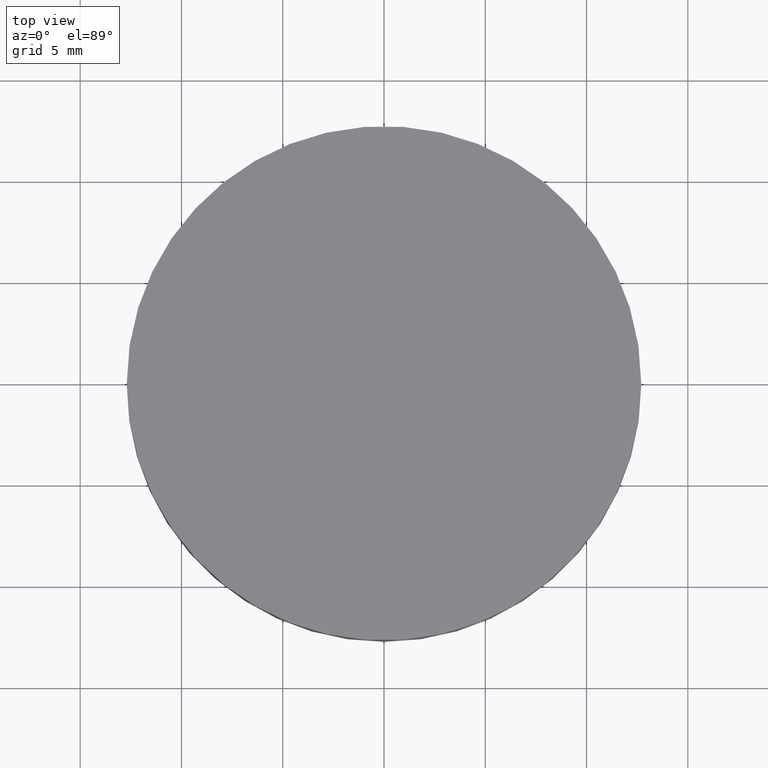
[diagram: clean part render]
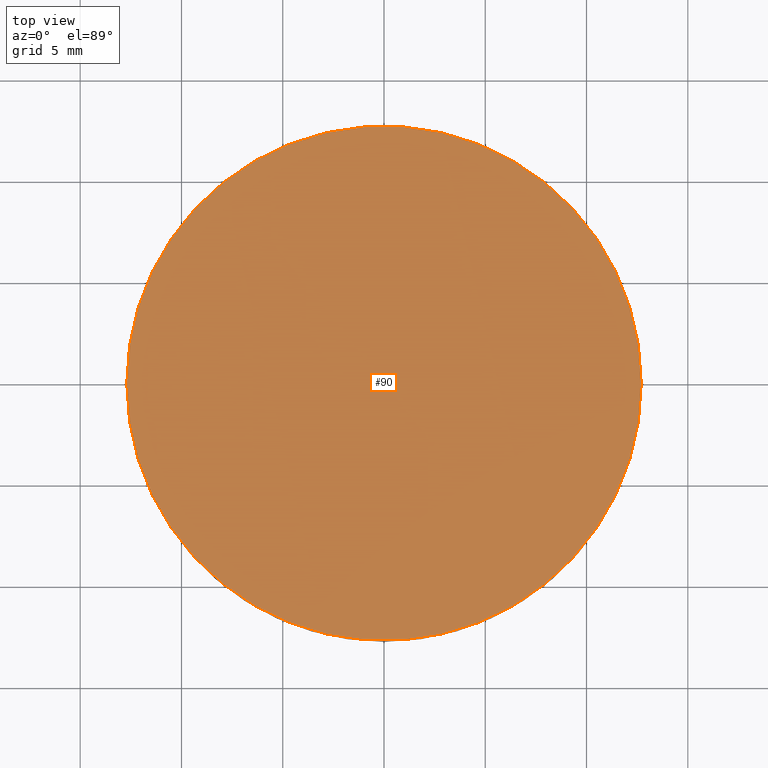
[diagram: same view with one face highlighted and labeled with its STEP entity id]
A machine part, top view. The second image highlights one B-rep face of the part: STEP entity #90.
In plain terms, the highlighted planar face has unit normal (0, 0, 1).
Its self-contained STEP definition (entity closure, byte-faithful):
#9 = CARTESIAN_POINT ( 'NONE',  ( 0.0000000000000000000, 26.11199999999999800, 3.100000000000000500 ) ) ;
#25 = CIRCLE ( 'NONE', #119, 12.69999999999999900 ) ;
#27 = PLANE ( 'NONE',  #140 ) ;
#31 = CARTESIAN_POINT ( 'NONE',  ( -12.69999999999999900, 3.997792089092478900E-015, 3.100000000000000500 ) ) ;
#38 = FACE_OUTER_BOUND ( 'NONE', #86, .T. ) ;
#46 = DIRECTION ( 'NONE',  ( -0.0000000000000000000, -0.0000000000000000000, -1.000000000000000000 ) ) ;
#47 = DIRECTION ( 'NONE',  ( 1.000000000000000000, 0.0000000000000000000, 0.0000000000000000000 ) ) ;
#50 = DIRECTION ( 'NONE',  ( 0.0000000000000000000, 0.0000000000000000000, 1.000000000000000000 ) ) ;
#75 = VERTEX_POINT ( 'NONE', #215 ) ;
#76 = CIRCLE ( 'NONE', #157, 12.69999999999999900 ) ;
#86 = EDGE_LOOP ( 'NONE', ( #171, #229 ) ) ;
#90 = ADVANCED_FACE ( 'NONE', ( #38 ), #27, .T. ) ;
#104 = DIRECTION ( 'NONE',  ( 1.000000000000000000, 0.0000000000000000000, 0.0000000000000000000 ) ) ;
#105 = DIRECTION ( 'NONE',  ( -0.0000000000000000000, -0.0000000000000000000, -1.000000000000000000 ) ) ;
#119 = AXIS2_PLACEMENT_3D ( 'NONE', #180, #46, #47 ) ;
#128 = EDGE_CURVE ( 'NONE', #184, #75, #25, .T. ) ;
#140 = AXIS2_PLACEMENT_3D ( 'NONE', #9, #50, #217 ) ;
#157 = AXIS2_PLACEMENT_3D ( 'NONE', #220, #105, #104 ) ;
#171 = ORIENTED_EDGE ( 'NONE', *, *, #172, .F. ) ;
#172 = EDGE_CURVE ( 'NONE', #75, #184, #76, .T. ) ;
#180 = CARTESIAN_POINT ( 'NONE',  ( 4.996003610813200500E-016, 2.442490654175340100E-015, 3.100000000000000500 ) ) ;
#184 = VERTEX_POINT ( 'NONE', #31 ) ;
#215 = CARTESIAN_POINT ( 'NONE',  ( 12.69999999999999900, 2.442490654175340100E-015, 3.100000000000000500 ) ) ;
#217 = DIRECTION ( 'NONE',  ( 1.000000000000000000, 0.0000000000000000000, -0.0000000000000000000 ) ) ;
#220 = CARTESIAN_POINT ( 'NONE',  ( 4.996003610813200500E-016, 2.442490654175340100E-015, 3.100000000000000500 ) ) ;
#229 = ORIENTED_EDGE ( 'NONE', *, *, #128, .F. ) ;